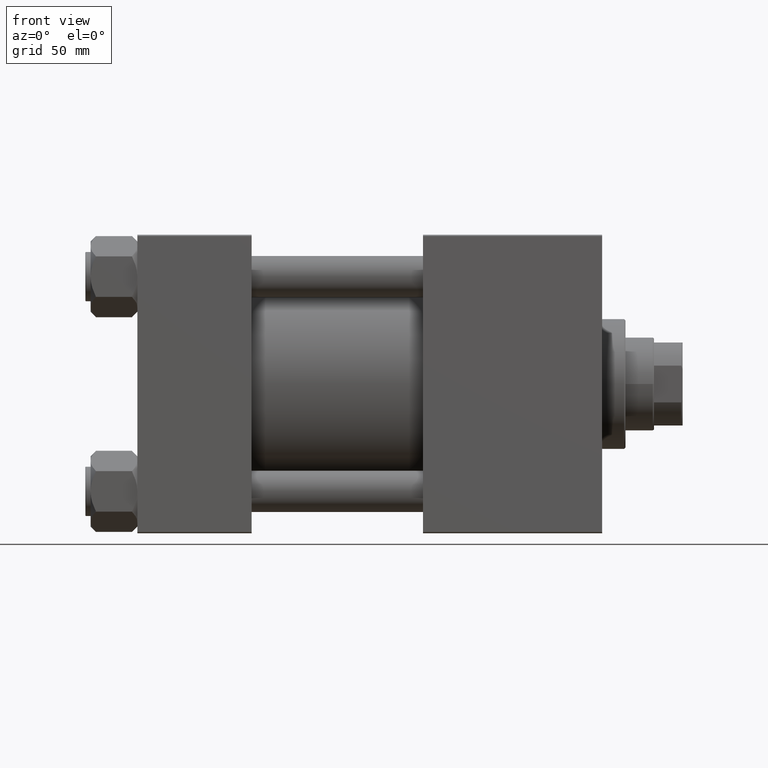
[diagram: clean part render]
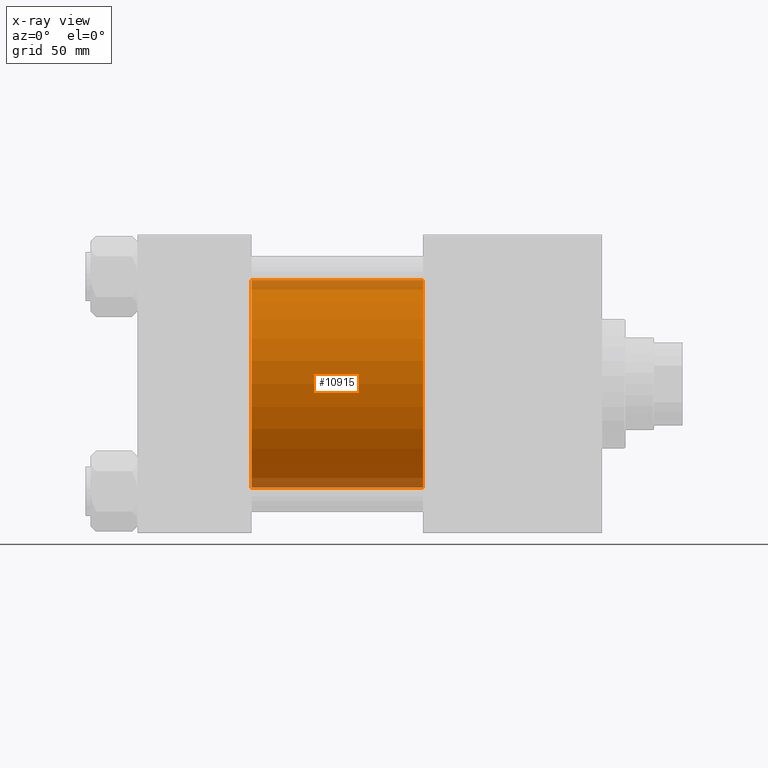
[diagram: x-ray — body ghosted, one internal face saturated and labeled with its STEP entity id]
A machine part, front view, then the same camera in x-ray: the body is ghosted and one INTERNAL B-rep face — a face not visible from any outside direction — is saturated and labeled: STEP entity #10915.
In plain terms, the highlighted cylindrical surface (partial cylindrical patch) has radius 40 mm, axis along (-1, -0, -0).
Its self-contained STEP definition (entity closure, byte-faithful):
#140 = AXIS2_PLACEMENT_3D ( 'NONE', #15610, #43101, #12272 ) ;
#2257 = CARTESIAN_POINT ( 'NONE',  ( 110.0000000000000000, -2.602085213965210642E-15, 40.00000000000000000 ) ) ;
#2586 = CIRCLE ( 'NONE', #140, 40.00000000000000000 ) ;
#4359 = DIRECTION ( 'NONE',  ( -1.000000000000000000, -0.000000000000000000, -0.000000000000000000 ) ) ;
#6677 = CARTESIAN_POINT ( 'NONE',  ( 110.0000000000000000, -2.602085213965210642E-15, 0.000000000000000000 ) ) ;
#6711 = CARTESIAN_POINT ( 'NONE',  ( 110.0000000000000000, -2.602085213965210642E-15, 40.00000000000000000 ) ) ;
#8211 = LINE ( 'NONE', #39575, #32069 ) ;
#10619 = VERTEX_POINT ( 'NONE', #32022 ) ;
#10740 = EDGE_LOOP ( 'NONE', ( #34073, #44075, #26735, #43844 ) ) ;
#10915 = ADVANCED_FACE ( 'NONE', ( #22080 ), #37777, .F. ) ;
#11901 = CIRCLE ( 'NONE', #50467, 40.00000000000000000 ) ;
#12102 = VERTEX_POINT ( 'NONE', #27460 ) ;
#12272 = DIRECTION ( 'NONE',  ( 0.000000000000000000, 0.000000000000000000, -1.000000000000000000 ) ) ;
#13286 = VECTOR ( 'NONE', #29736, 1000.000000000000000 ) ;
#15200 = EDGE_CURVE ( 'NONE', #49640, #12102, #8211, .T. ) ;
#15610 = CARTESIAN_POINT ( 'NONE',  ( 110.0000000000000000, -2.602085213965210642E-15, 0.000000000000000000 ) ) ;
#22080 = FACE_OUTER_BOUND ( 'NONE', #10740, .T. ) ;
#26735 = ORIENTED_EDGE ( 'NONE', *, *, #27364, .F. ) ;
#27364 = EDGE_CURVE ( 'NONE', #10619, #12102, #11901, .T. ) ;
#27460 = CARTESIAN_POINT ( 'NONE',  ( 44.00000000000000000, 2.296501982624201990E-15, -40.00000000000000000 ) ) ;
#27518 = CARTESIAN_POINT ( 'NONE',  ( 110.0000000000000000, 2.296501982624201990E-15, -40.00000000000000000 ) ) ;
#29736 = DIRECTION ( 'NONE',  ( -1.000000000000000000, -0.000000000000000000, -0.000000000000000000 ) ) ;
#30293 = DIRECTION ( 'NONE',  ( 0.000000000000000000, 0.000000000000000000, 1.000000000000000000 ) ) ;
#30723 = VERTEX_POINT ( 'NONE', #6711 ) ;
#32022 = CARTESIAN_POINT ( 'NONE',  ( 44.00000000000000000, -2.602085213965210642E-15, 40.00000000000000000 ) ) ;
#32069 = VECTOR ( 'NONE', #4359, 1000.000000000000000 ) ;
#34073 = ORIENTED_EDGE ( 'NONE', *, *, #50335, .T. ) ;
#37777 = CYLINDRICAL_SURFACE ( 'NONE', #46701, 40.00000000000000000 ) ;
#37905 = CARTESIAN_POINT ( 'NONE',  ( 44.00000000000000000, -2.602085213965210642E-15, 0.000000000000000000 ) ) ;
#38034 = DIRECTION ( 'NONE',  ( -1.000000000000000000, -0.000000000000000000, -0.000000000000000000 ) ) ;
#38151 = DIRECTION ( 'NONE',  ( 1.000000000000000000, 0.000000000000000000, 0.000000000000000000 ) ) ;
#39174 = DIRECTION ( 'NONE',  ( 0.000000000000000000, 0.000000000000000000, -1.000000000000000000 ) ) ;
#39575 = CARTESIAN_POINT ( 'NONE',  ( 110.0000000000000000, 2.296501982624201990E-15, -40.00000000000000000 ) ) ;
#41322 = LINE ( 'NONE', #2257, #13286 ) ;
#43101 = DIRECTION ( 'NONE',  ( 1.000000000000000000, 0.000000000000000000, 0.000000000000000000 ) ) ;
#43844 = ORIENTED_EDGE ( 'NONE', *, *, #50182, .F. ) ;
#44075 = ORIENTED_EDGE ( 'NONE', *, *, #15200, .T. ) ;
#46701 = AXIS2_PLACEMENT_3D ( 'NONE', #6677, #38034, #30293 ) ;
#49640 = VERTEX_POINT ( 'NONE', #27518 ) ;
#50182 = EDGE_CURVE ( 'NONE', #30723, #10619, #41322, .T. ) ;
#50335 = EDGE_CURVE ( 'NONE', #30723, #49640, #2586, .T. ) ;
#50467 = AXIS2_PLACEMENT_3D ( 'NONE', #37905, #38151, #39174 ) ;